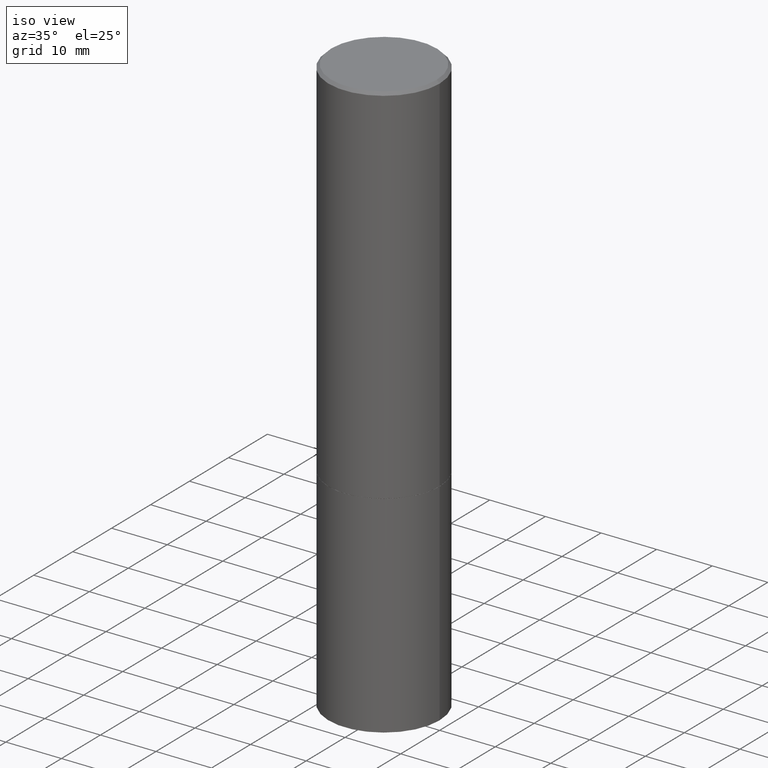
[diagram: clean part render]
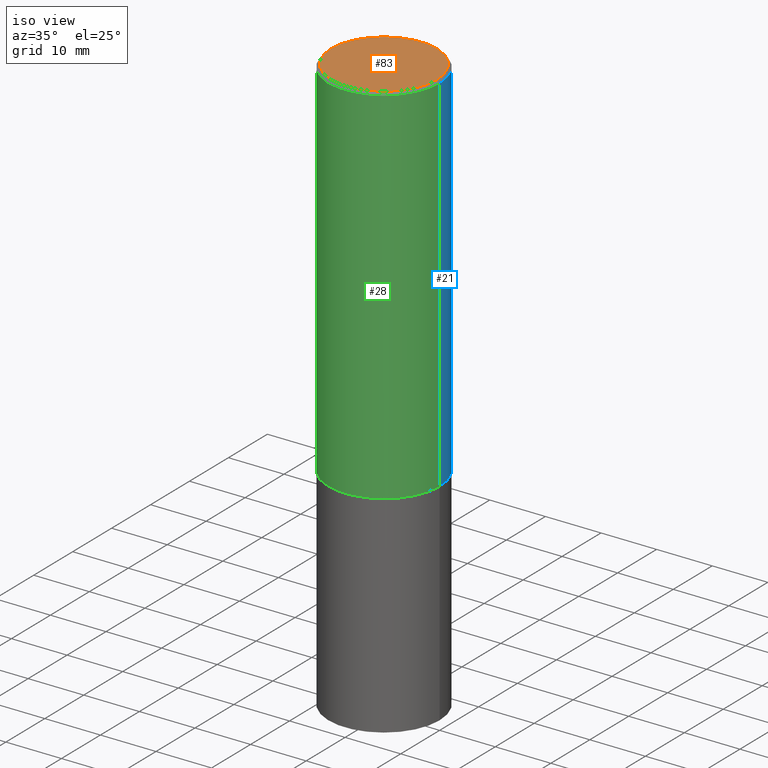
[diagram: same view with three faces highlighted in distinct colors, each labeled with its STEP entity id]
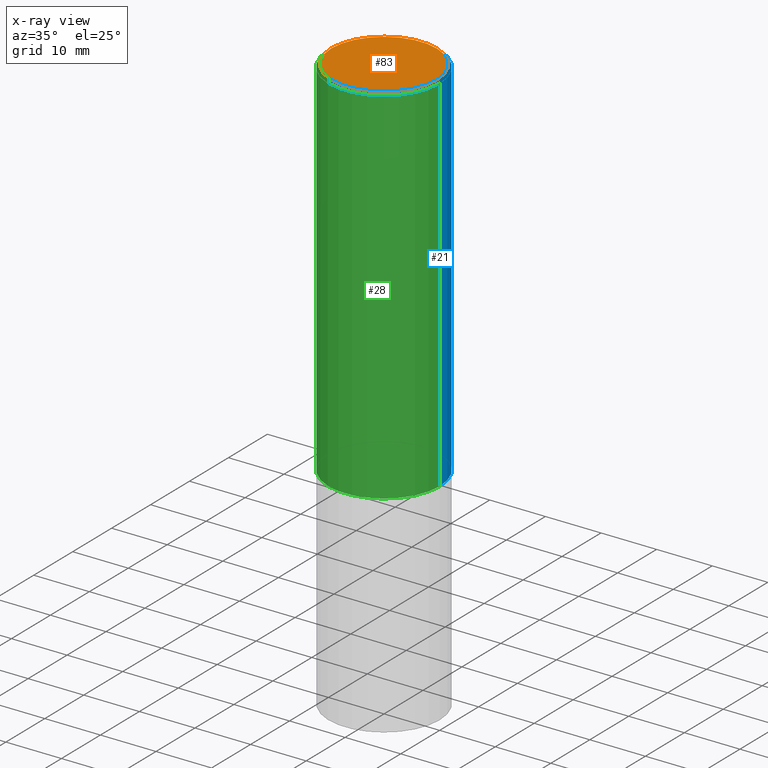
[diagram: x-ray of the same camera — body ghosted, the three highlighted faces saturated]
A machine part, iso view with three faces highlighted in distinct colors.
The next image is the same camera in x-ray (body ghosted, the three faces saturated) — at least one of them is partly hidden behind the body in this view.
Their STEP definitions:

[orange] entity #83 — the highlighted planar face has unit normal (0, -0, -1).
#4 = DIRECTION ( 'NONE',  ( -1.000000000000000000, 6.982962677686265922E-15, -4.876176775795935793E-29 ) ) ;
#64 = CARTESIAN_POINT ( 'NONE',  ( -0.3736999999999996436, 2.644447966039786297E-15, 8.537024980182450727E-18 ) ) ;
#71 = CARTESIAN_POINT ( 'NONE',  ( -2.087702828670439639E-46, 2.980686340760894400E-32, 8.537024980200822558E-18 ) ) ;
#83 = ADVANCED_FACE ( 'NONE', ( #183 ), #344, .F. ) ;
#109 = CIRCLE ( 'NONE', #141, 0.3736999999999996436 ) ;
#120 = VERTEX_POINT ( 'NONE', #153 ) ;
#141 = AXIS2_PLACEMENT_3D ( 'NONE', #158, #318, #162 ) ;
#148 = ORIENTED_EDGE ( 'NONE', *, *, #270, .T. ) ;
#153 = CARTESIAN_POINT ( 'NONE',  ( 0.3736999999999996436, -2.667287895133365992E-15, 8.537024980219274507E-18 ) ) ;
#155 = DIRECTION ( 'NONE',  ( -2.445468806185136597E-29, 3.491481338843145583E-15, 1.000000000000000000 ) ) ;
#158 = CARTESIAN_POINT ( 'NONE',  ( -2.087702828670439639E-46, 2.980686340760894400E-32, 8.537024980200822558E-18 ) ) ;
#162 = DIRECTION ( 'NONE',  ( 1.000000000000000000, -6.982962677686266711E-15, 4.876212485538980163E-29 ) ) ;
#183 = FACE_OUTER_BOUND ( 'NONE', #332, .T. ) ;
#185 = DIRECTION ( 'NONE',  ( 2.438088387897960049E-29, -3.491481338843145188E-15, -1.000000000000000000 ) ) ;
#205 = CIRCLE ( 'NONE', #357, 0.3736999999999996436 ) ;
#226 = ORIENTED_EDGE ( 'NONE', *, *, #326, .T. ) ;
#256 = DIRECTION ( 'NONE',  ( 1.000000000000000000, -6.982962677686266711E-15, 4.876212485538980163E-29 ) ) ;
#270 = EDGE_CURVE ( 'NONE', #120, #276, #205, .T. ) ;
#276 = VERTEX_POINT ( 'NONE', #64 ) ;
#278 = CARTESIAN_POINT ( 'NONE',  ( 2.609533152651354648E-15, 0.3736999999999996436, -1.300498063835581828E-15 ) ) ;
#279 = AXIS2_PLACEMENT_3D ( 'NONE', #278, #185, #4 ) ;
#318 = DIRECTION ( 'NONE',  ( -2.445468806185136597E-29, 3.491481338843145583E-15, 1.000000000000000000 ) ) ;
#326 = EDGE_CURVE ( 'NONE', #276, #120, #109, .T. ) ;
#332 = EDGE_LOOP ( 'NONE', ( #226, #148 ) ) ;
#344 = PLANE ( 'NONE',  #279 ) ;
#357 = AXIS2_PLACEMENT_3D ( 'NONE', #71, #155, #256 ) ;

[blue] entity #21 — the highlighted cylindrical surface (partial cylindrical patch) has radius 10 mm, axis along (-0, 0, 1).
#3 = VECTOR ( 'NONE', #78, 39.37007874015748143 ) ;
#10 = VERTEX_POINT ( 'NONE', #152 ) ;
#16 = CARTESIAN_POINT ( 'NONE',  ( 4.890937612370298557E-31, -6.982962677686327354E-17, -0.02000000000000010103 ) ) ;
#20 = ORIENTED_EDGE ( 'NONE', *, *, #274, .T. ) ;
#21 = ADVANCED_FACE ( 'NONE', ( #69 ), #327, .T. ) ;
#24 = AXIS2_PLACEMENT_3D ( 'NONE', #16, #133, #105 ) ;
#33 = VERTEX_POINT ( 'NONE', #111 ) ;
#34 = CARTESIAN_POINT ( 'NONE',  ( 6.351860677185276395E-29, -9.068773629511191193E-15, -2.597400000000001263 ) ) ;
#43 = DIRECTION ( 'NONE',  ( -2.445468806185136877E-29, 3.491481338843145188E-15, 1.000000000000000000 ) ) ;
#44 = EDGE_CURVE ( 'NONE', #33, #10, #89, .T. ) ;
#47 = DIRECTION ( 'NONE',  ( -2.445468806185136597E-29, 3.491481338843145583E-15, 1.000000000000000000 ) ) ;
#69 = FACE_OUTER_BOUND ( 'NONE', #354, .T. ) ;
#73 = EDGE_CURVE ( 'NONE', #113, #33, #241, .T. ) ;
#78 = DIRECTION ( 'NONE',  ( -2.445468806185136877E-29, 3.491481338843145188E-15, 1.000000000000000000 ) ) ;
#89 = CIRCLE ( 'NONE', #24, 0.3936999999999996613 ) ;
#105 = DIRECTION ( 'NONE',  ( 1.000000000000000000, -6.982962677686266711E-15, 0.000000000000000000 ) ) ;
#111 = CARTESIAN_POINT ( 'NONE',  ( 0.3936999999999996613, -2.770807688499512973E-15, -0.02000000000000010103 ) ) ;
#113 = VERTEX_POINT ( 'NONE', #342 ) ;
#118 = DIRECTION ( 'NONE',  ( 1.000000000000000000, -6.982962677686266711E-15, 4.876176775795935793E-29 ) ) ;
#125 = DIRECTION ( 'NONE',  ( 1.000000000000000000, -6.982962677686267499E-15, 0.000000000000000000 ) ) ;
#133 = DIRECTION ( 'NONE',  ( -2.445468806185136597E-29, 3.491481338843145583E-15, 1.000000000000000000 ) ) ;
#149 = DIRECTION ( 'NONE',  ( -2.445468806185136597E-29, 3.491481338843145583E-15, 1.000000000000000000 ) ) ;
#152 = CARTESIAN_POINT ( 'NONE',  ( -0.3936999999999996613, 2.679362779428217552E-15, -0.02000000000000010103 ) ) ;
#197 = CARTESIAN_POINT ( 'NONE',  ( 0.000000000000000000, 0.000000000000000000, 0.000000000000000000 ) ) ;
#201 = VERTEX_POINT ( 'NONE', #211 ) ;
#211 = CARTESIAN_POINT ( 'NONE',  ( -0.3937000000000000499, -1.771894877456511079E-15, -2.597400000000001263 ) ) ;
#212 = AXIS2_PLACEMENT_3D ( 'NONE', #197, #47, #118 ) ;
#216 = LINE ( 'NONE', #236, #361 ) ;
#236 = CARTESIAN_POINT ( 'NONE',  ( -0.3936999999999998279, 2.797406750687513209E-15, -1.936584745033355614E-29 ) ) ;
#241 = LINE ( 'NONE', #356, #3 ) ;
#244 = ORIENTED_EDGE ( 'NONE', *, *, #73, .F. ) ;
#274 = EDGE_CURVE ( 'NONE', #113, #201, #316, .T. ) ;
#284 = EDGE_CURVE ( 'NONE', #201, #10, #216, .T. ) ;
#305 = ORIENTED_EDGE ( 'NONE', *, *, #284, .T. ) ;
#309 = AXIS2_PLACEMENT_3D ( 'NONE', #34, #149, #125 ) ;
#316 = CIRCLE ( 'NONE', #309, 0.3937000000000000499 ) ;
#327 = CYLINDRICAL_SURFACE ( 'NONE', #212, 0.3936999999999998279 ) ;
#335 = ORIENTED_EDGE ( 'NONE', *, *, #44, .F. ) ;
#342 = CARTESIAN_POINT ( 'NONE',  ( 0.3937000000000000499, -1.181796603571627441E-14, -2.597400000000001263 ) ) ;
#354 = EDGE_LOOP ( 'NONE', ( #20, #305, #335, #244 ) ) ;
#356 = CARTESIAN_POINT ( 'NONE',  ( 0.3936999999999998279, -2.749192406205082033E-15, 1.919750796630859051E-29 ) ) ;
#361 = VECTOR ( 'NONE', #43, 39.37007874015748143 ) ;

[green] entity #28 — the highlighted cylindrical surface (partial cylindrical patch) has radius 10 mm, axis along (-0, 0, 1).
#3 = VECTOR ( 'NONE', #78, 39.37007874015748143 ) ;
#10 = VERTEX_POINT ( 'NONE', #152 ) ;
#12 = DIRECTION ( 'NONE',  ( -2.445468806185136597E-29, 3.491481338843145583E-15, 1.000000000000000000 ) ) ;
#23 = CARTESIAN_POINT ( 'NONE',  ( 0.000000000000000000, 0.000000000000000000, 0.000000000000000000 ) ) ;
#28 = ADVANCED_FACE ( 'NONE', ( #192 ), #46, .T. ) ;
#33 = VERTEX_POINT ( 'NONE', #111 ) ;
#43 = DIRECTION ( 'NONE',  ( -2.445468806185136877E-29, 3.491481338843145188E-15, 1.000000000000000000 ) ) ;
#46 = CYLINDRICAL_SURFACE ( 'NONE', #129, 0.3936999999999998279 ) ;
#49 = DIRECTION ( 'NONE',  ( 1.000000000000000000, -6.982962677686266711E-15, 4.876176775795935793E-29 ) ) ;
#52 = AXIS2_PLACEMENT_3D ( 'NONE', #258, #311, #283 ) ;
#54 = EDGE_LOOP ( 'NONE', ( #58, #159, #146, #272 ) ) ;
#58 = ORIENTED_EDGE ( 'NONE', *, *, #284, .F. ) ;
#65 = DIRECTION ( 'NONE',  ( -2.445468806185136597E-29, 3.491481338843145583E-15, 1.000000000000000000 ) ) ;
#68 = AXIS2_PLACEMENT_3D ( 'NONE', #130, #65, #340 ) ;
#73 = EDGE_CURVE ( 'NONE', #113, #33, #241, .T. ) ;
#78 = DIRECTION ( 'NONE',  ( -2.445468806185136877E-29, 3.491481338843145188E-15, 1.000000000000000000 ) ) ;
#94 = EDGE_CURVE ( 'NONE', #10, #33, #218, .T. ) ;
#111 = CARTESIAN_POINT ( 'NONE',  ( 0.3936999999999996613, -2.770807688499512973E-15, -0.02000000000000010103 ) ) ;
#113 = VERTEX_POINT ( 'NONE', #342 ) ;
#129 = AXIS2_PLACEMENT_3D ( 'NONE', #23, #12, #49 ) ;
#130 = CARTESIAN_POINT ( 'NONE',  ( 6.351860677185276395E-29, -9.068773629511191193E-15, -2.597400000000001263 ) ) ;
#137 = EDGE_CURVE ( 'NONE', #201, #113, #156, .T. ) ;
#146 = ORIENTED_EDGE ( 'NONE', *, *, #73, .T. ) ;
#152 = CARTESIAN_POINT ( 'NONE',  ( -0.3936999999999996613, 2.679362779428217552E-15, -0.02000000000000010103 ) ) ;
#156 = CIRCLE ( 'NONE', #68, 0.3937000000000000499 ) ;
#159 = ORIENTED_EDGE ( 'NONE', *, *, #137, .T. ) ;
#192 = FACE_OUTER_BOUND ( 'NONE', #54, .T. ) ;
#201 = VERTEX_POINT ( 'NONE', #211 ) ;
#211 = CARTESIAN_POINT ( 'NONE',  ( -0.3937000000000000499, -1.771894877456511079E-15, -2.597400000000001263 ) ) ;
#216 = LINE ( 'NONE', #236, #361 ) ;
#218 = CIRCLE ( 'NONE', #52, 0.3936999999999996613 ) ;
#236 = CARTESIAN_POINT ( 'NONE',  ( -0.3936999999999998279, 2.797406750687513209E-15, -1.936584745033355614E-29 ) ) ;
#241 = LINE ( 'NONE', #356, #3 ) ;
#258 = CARTESIAN_POINT ( 'NONE',  ( 4.890937612370298557E-31, -6.982962677686327354E-17, -0.02000000000000010103 ) ) ;
#272 = ORIENTED_EDGE ( 'NONE', *, *, #94, .F. ) ;
#283 = DIRECTION ( 'NONE',  ( 1.000000000000000000, -6.982962677686266711E-15, 0.000000000000000000 ) ) ;
#284 = EDGE_CURVE ( 'NONE', #201, #10, #216, .T. ) ;
#311 = DIRECTION ( 'NONE',  ( -2.445468806185136597E-29, 3.491481338843145583E-15, 1.000000000000000000 ) ) ;
#340 = DIRECTION ( 'NONE',  ( 1.000000000000000000, -6.982962677686267499E-15, 0.000000000000000000 ) ) ;
#342 = CARTESIAN_POINT ( 'NONE',  ( 0.3937000000000000499, -1.181796603571627441E-14, -2.597400000000001263 ) ) ;
#356 = CARTESIAN_POINT ( 'NONE',  ( 0.3936999999999998279, -2.749192406205082033E-15, 1.919750796630859051E-29 ) ) ;
#361 = VECTOR ( 'NONE', #43, 39.37007874015748143 ) ;